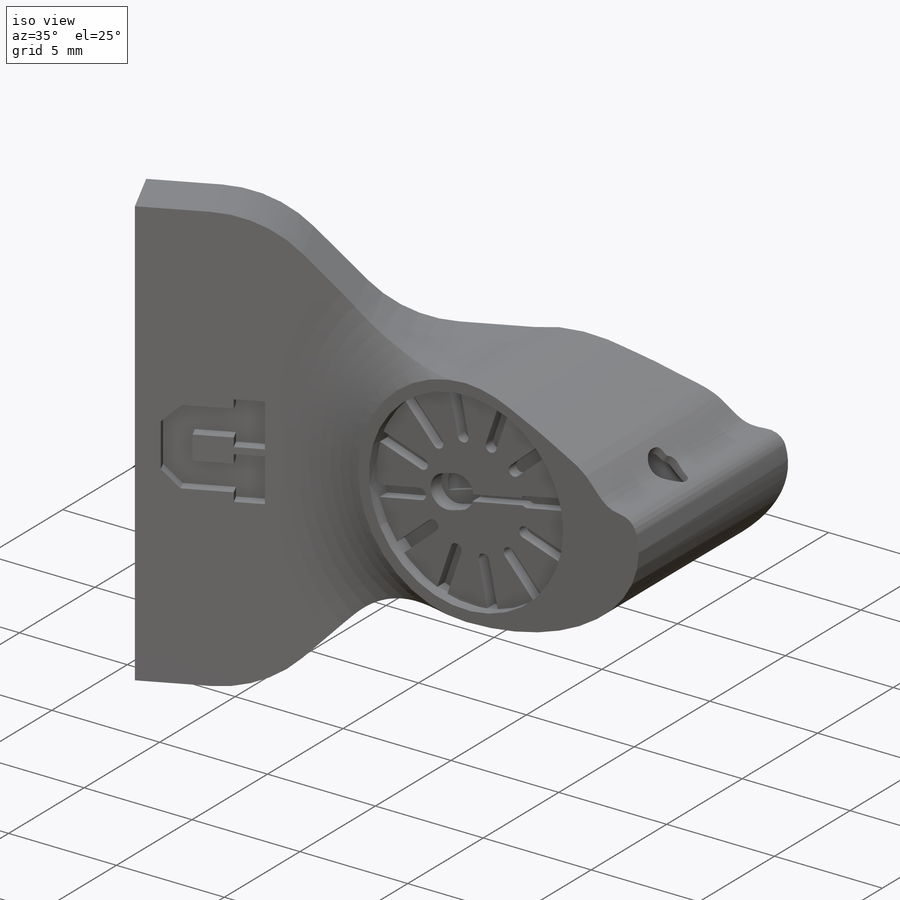
[diagram: iso view]
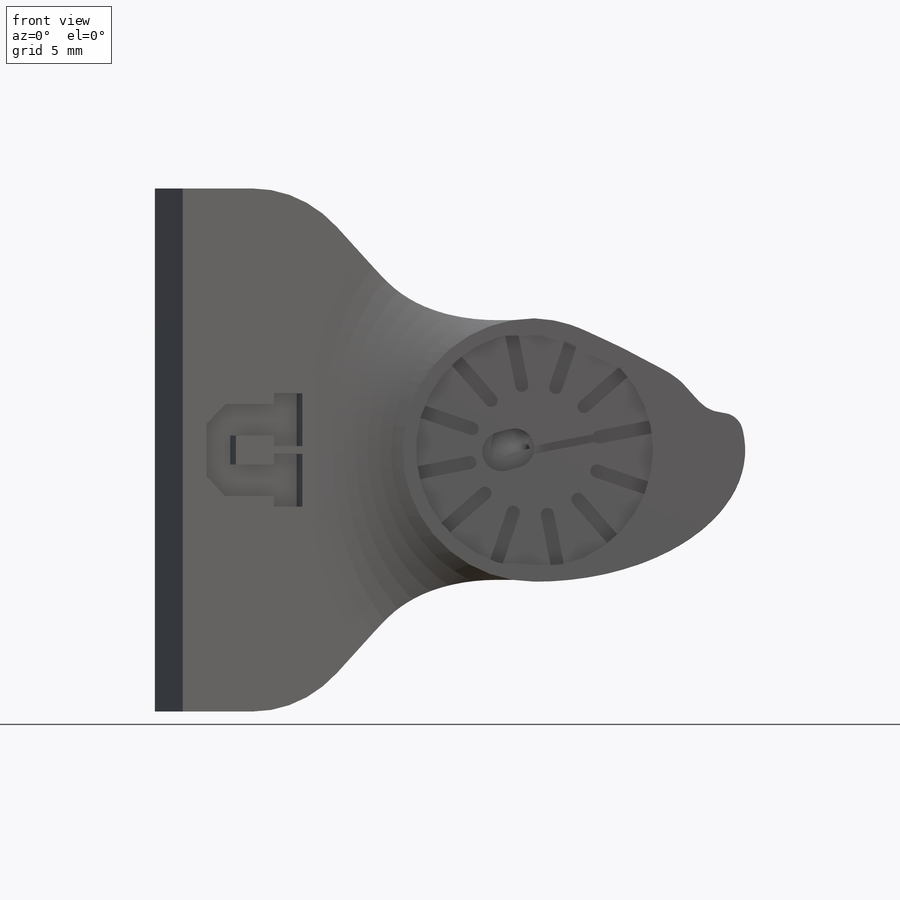
[diagram: front view]
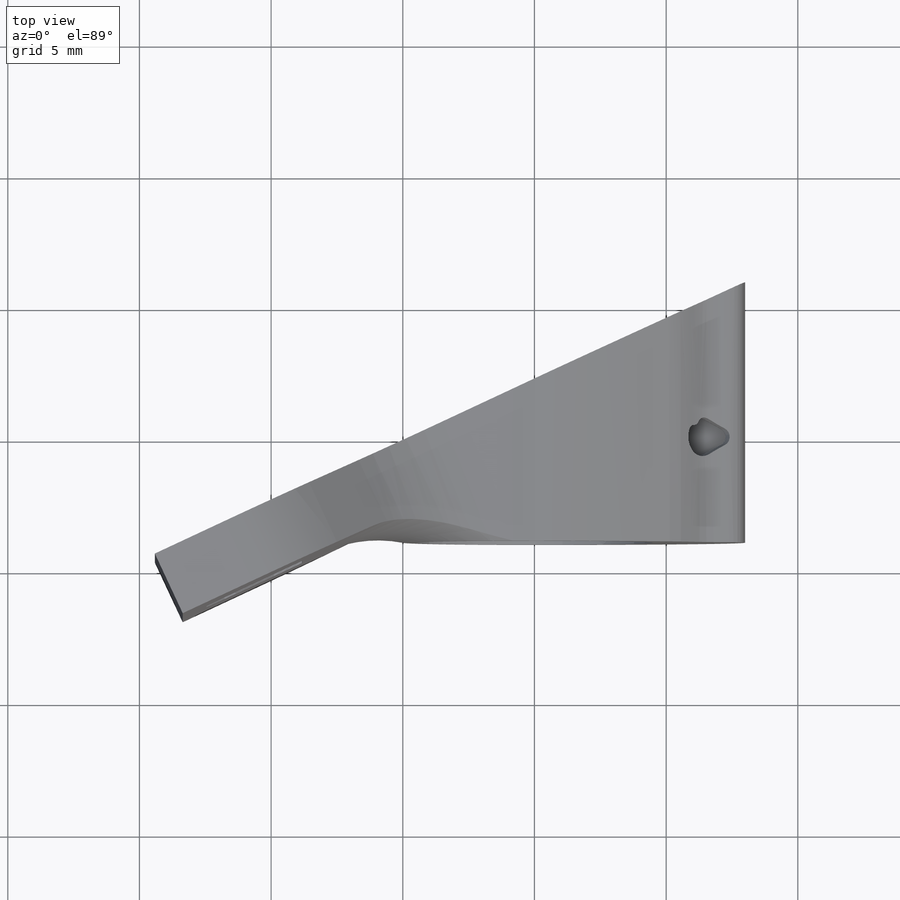
[diagram: top view]
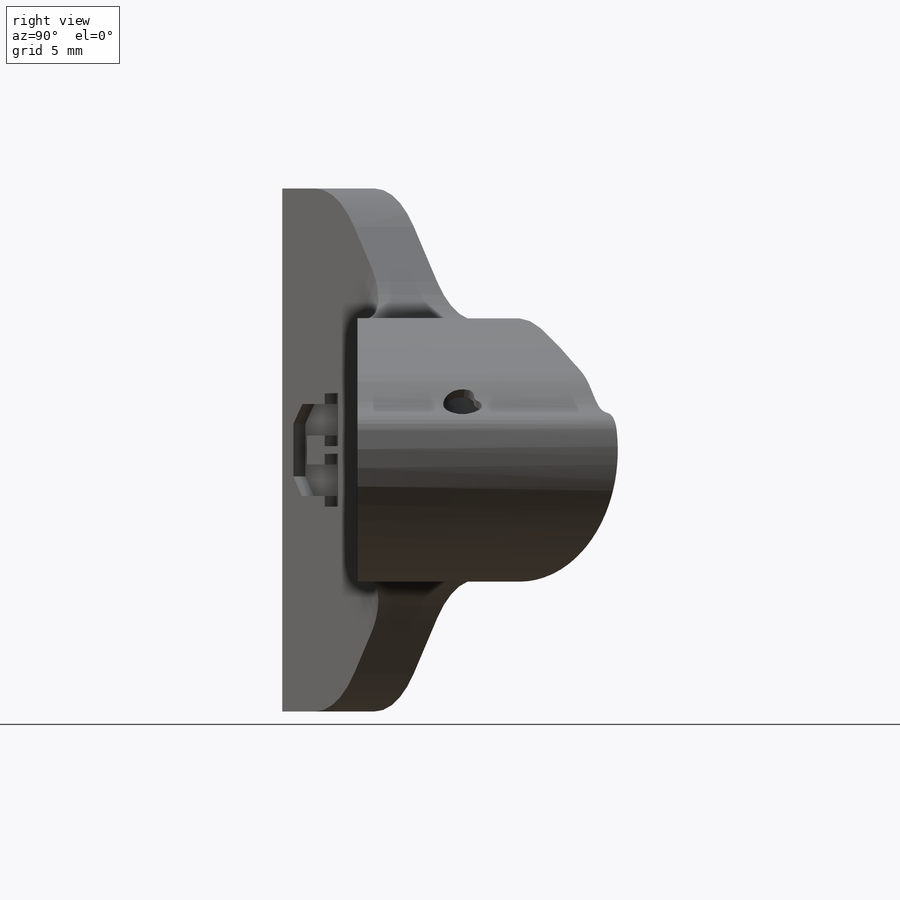
[diagram: right view]
SOLIDWORKS PART (.sldprt)
format: sldprt  version: not decoded by parser v0  size: 1,525,760 bytes
history: native  units: mm
features: sketch x54, plane x43, curve x37, cut_extrude x11, fillet x7, extrude x4, material x1, pattern_circular x1 (+11 scaffold rows collapsed)
feature tree (169):
  scaffold x11  (default folders/planes/origin — collapsed)
  material  "Material <not specified>"
  curve  "Curve2"
  curve  "Curve3"
  curve  "Curve4"
  curve  "Curve5"
  curve  "Curve6"
  curve  "Curve7"
  curve  "Curve8"
  curve  "Curve9"
  curve  "Curve10"
  curve  "Curve11"
  curve  "Curve12"
  curve  "Curve13"
  curve  "Curve14"
  curve  "Curve15"
  curve  "Curve16"
  curve  "Curve17"
  curve  "Curve18"
  curve  "Curve19"
  curve  "Curve20"
  curve  "Curve21"
  curve  "Curve22"
  curve  "Curve23"
  curve  "Curve24"
  curve  "Curve25"
  curve  "Curve26"
  curve  "Curve27"
  curve  "Curve28"
  curve  "Curve29"
  curve  "Curve30"
  curve  "Curve31"
  curve  "Curve32"
  curve  "Curve33"
  curve  "Curve34"
  curve  "Curve35"
  curve  "Curve36"
  curve  "Curve37"
  curve  "Curve38"
  plane  "Plane1"
  plane  "Plane2"
  plane  "Plane3"
  plane  "Plane4"
  plane  "Plane5"
  plane  "Plane6"
  plane  "Plane7"
  plane  "Plane8"
  plane  "Plane9"
  plane  "Plane10"
  plane  "Plane11"
  plane  "Plane12"
  plane  "Plane13"
  plane  "Plane14"
  plane  "Plane15"
  plane  "Plane16"
  plane  "Plane17"
  plane  "Plane18"
  plane  "Plane19"
  plane  "Plane20"
  plane  "Plane21"
  plane  "Plane22"
  plane  "Plane23"
  plane  "Plane24"
  plane  "Plane25"
  plane  "Plane26"
  plane  "Plane27"
  plane  "Plane28"
  plane  "Plane29"
  plane  "Plane30"
  plane  "Plane31"
  plane  "Plane32"
  plane  "Plane33"
  plane  "Plane34"
  plane  "Plane35"
  plane  "Plane36"
  plane  "Plane37"
  plane  "Plane38"
  sketch  "Sketch1"
  sketch  "Sketch2"
  sketch  "Sketch3"
  sketch  "Sketch4"
  sketch  "Sketch5"
  sketch  "Sketch6"
  sketch  "Sketch7"
  sketch  "Sketch8"
  sketch  "Sketch9"
  sketch  "Sketch10"
  sketch  "Sketch11"
  sketch  "Sketch12"
  sketch  "Sketch13"
  sketch  "Sketch14"
  sketch  "Sketch15"
  sketch  "Sketch16"
  sketch  "Sketch17"
  sketch  "Sketch18"
  sketch  "Sketch19"
  sketch  "Sketch20"
  sketch  "Sketch21"
  sketch  "Sketch22"
  sketch  "Sketch23"
  sketch  "Sketch24"
  sketch  "Sketch25"
  sketch  "Sketch26"
  sketch  "Sketch27"
  sketch  "Sketch28"
  sketch  "Sketch29"
  sketch  "Sketch30"
  sketch  "Sketch31"
  sketch  "Sketch32"
  sketch  "Sketch33"
  sketch  "Sketch34"
  sketch  "Sketch35"
  sketch  "Sketch36"
  sketch  "Sketch37"
  sketch  "Sketch38"  dims[D1=~0.593275mm]
  plane  "Plane_13.5"
  plane  "Plane_23.8"
  sketch  "Sketch39"  dims[c1.D1=20.0mm c1.D2=10.0mm c2.D1=8.0mm c2.D2=~8.944272mm c3.D2=90.0deg c3.D1=4.0mm c4.D2=8.0mm c4.D3=6.0mm c4.D4=4.0mm c4.D1=20.0mm c5.D2=20.0mm]
  extrude  "Boss-Extrude1"  Depth=4mm
  sketch  "Sketch_Tilt_25_deg"  dims[c1.D1=25.0deg c2.D1=4.0mm]
  extrude  "Boss-Extrude2"  [1 undecoded]
  sketch  "Sketch44"  dims[D1=20.0mm]
  cut_extrude  "Cut-Extrude2"  Depth=5mm
  sketch  "Sketch50"  dims[D1=5.0mm]
  cut_extrude  "Cut-Extrude13"  [1 undecoded]
  sketch  "Sketch51"  dims[D1=9.0mm]
  cut_extrude  "Cut-Extrude14"  Depth=0.5mm
  sketch  "Sketch53"  dims[c1.D2=~0.507676mm c1.D3=~0.279862mm c1.D1=0.5mm c2.D2=0.375mm c2.D1=4.5mm c3.D2=13.45deg c3.D1=4.5mm c4.D2=13.5deg c4.D1=2.0mm c5.D2=13.5deg c5.D3=2.0mm c5.D1=0.0mm c6.D2=13.5deg c6.D3=2.0mm c6.D1=2.0mm c7.D2=11.2deg c7.D3=0.5mm c7.D4=0.5mm]
  cut_extrude  "Cut-Extrude16"  Depth=0.5mm
  pattern_circular  "CirPattern1"  Count=12 Angle=360deg
  sketch  "Sketch54"
  extrude  "Boss-Extrude4"  [1 undecoded]
  sketch  "Sketch55"  dims[D1=2.5mm]
  cut_extrude  "Cut-Extrude17"  Depth=0.5mm
  sketch  "Sketch56"  dims[c1.D1=~0.620269mm c1.D3=2.0mm c2.D1=~0.284342mm c2.D4=0.5mm c3.D1=1.0mm c3.D2=0.3mm c4.D1=1.0mm c4.D2=0.0mm c4.D3=~0.964164mm c4.D4=1.0mm c5.D3=0.5mm]
  cut_extrude  "Cut-Extrude18"  Depth=0.7mm
  sketch  "Sketch57"  dims[c1.D1=5.0mm c1.D2=5.0mm c1.D3=5.0mm c1.D4=5.0mm c1.D5=~5.66249mm c2.D5=135.0deg c2.D6=~5.008005mm c3.D6=135.0deg c3.D7=5.0mm c3.D8=5.0mm c3.D1=5.0mm c3.D2=5.0mm c3.D3=~4.650584mm c4.D3=135.0deg c4.D4=5.0mm c4.D5=~8.754907mm c5.D5=135.0deg c5.D6=5.0mm c5.D7=5.0mm c5.D8=5.0mm]
  extrude  "Boss-Extrude5"  Depth=2.5mm
  fillet  "Fillet7"  Radius=5mm
  fillet  "Fillet8"  Radius=5mm
  sketch  "Sketch58"  dims[D1=1.2mm D2=2.0mm D3=2.0mm D4=0.4mm D5=1.0mm D6=1.0mm]
  cut_extrude  "Cut-Extrude19"  Depth=0.5mm
  sketch  "Sketch66"  dims[D1=~0.299791mm]
  cut_extrude  "Cut-Extrude21"  [1 undecoded]
  sketch  "Sketch75"  dims[D1=5.0mm D2=7.0mm]
  cut_extrude  "Cut-Extrude_Nano17_Mount"  Depth=1mm
  plane  "Plane39"  Offset=1.49mm
  plane  "Plane40"
  plane  "Plane41"
  sketch  "Sketch76"  dims[c1.D1=~1.929554mm c1.D3=0.23mm c1.D4=0.72mm c2.D1=120.0deg c3.D1=0.77mm c3.D2=120.0deg]
  cut_extrude  "Cut-Extrude31"  Depth=0.3mm
  fillet  "Fillet16"  Radius=0.3mm
  fillet  "Fillet17"  Radius=0.3mm
  sketch  "Sketch77"  dims[c1.D1=0.25mm c2.D1=11.2deg]
  fillet  "Fillet18"  Radius=5mm
  fillet  "Fillet19"  Radius=0.8mm
  sketch  "Sketch78"  dims[D1=0.72mm]
  cut_extrude  "Cut-Extrude32"  [1 undecoded]
  fillet  "Fillet20"  Radius=1000mm
decode coverage: 34 of 114 modeling features carry decoded parameters
note: ~ marks probable driven/reference dimensions
note: 5 parameter values undecoded
summary: no parameter record found for 5 features
note: suppression state not decoded; provenance and decode notes live in map.json
